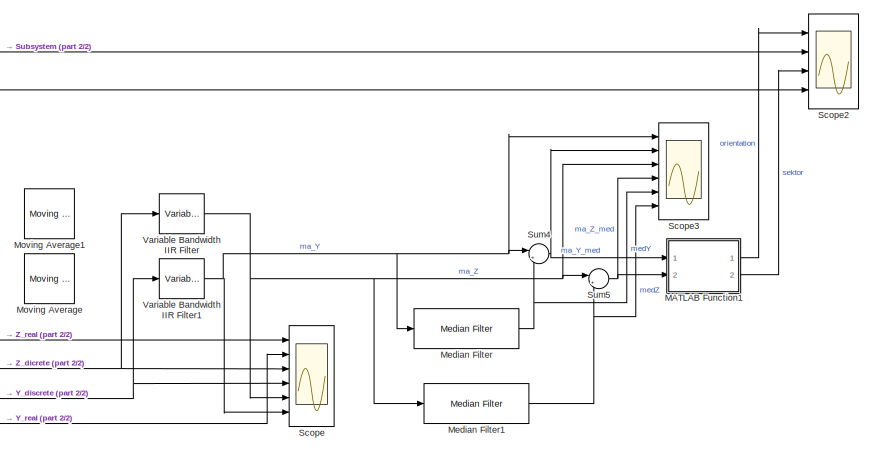
[diagram: root canvas - part 1/2, right side, full height]
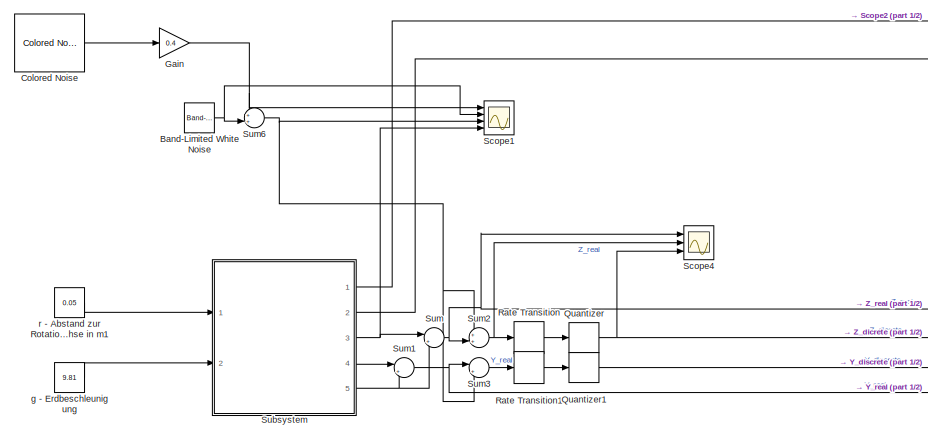
[diagram: root canvas - part 2/2, left side, full height]
MODEL slx_1b8a84136faf
KIND model
CONFIG AbsTol = auto
CONFIG EnableMultiTasking = off
CONFIG FixedStep = 1e-3
CONFIG MaxStep = auto
CONFIG MinStep = auto
CONFIG RelTol = 1e-3
CONFIG SampleTimeConstraint = Unconstrained
CONFIG Solver = FixedStepAuto
CONFIG SolverName = FixedStepAuto
CONFIG StartTime = 0.0
CONFIG StopTime = 30
BLOCK [Reference] Band-Limited White Noise  REF=simulink/Sources/Band-Limited
White Noise
  Ports = [0, 1]
  SourceBlock = simulink/Sources/Band-Limited\nWhite Noise
  SourceProductBaseCode = SL
  SourceType = Band-Limited White Noise.
BLOCK [Reference] Colored Noise  REF=dspsrcs4/Colored Noise
  Ports = [0, 1]
  SourceBlock = dspsrcs4/Colored Noise
  SourceProductBaseCode = DS
  SourceType = dsp.simulink.ColoredNoise
BLOCK [Gain] Gain
  Gain = 0.4
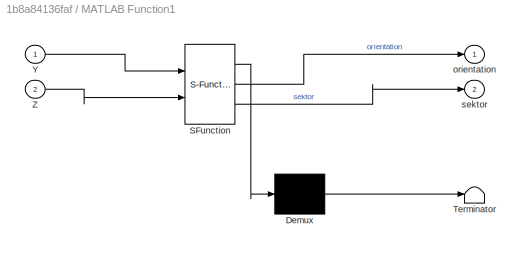
BLOCK [SubSystem] MATLAB Function1
  ErrorFcn = Stateflow.Translate.translate
  PermitHierarchicalResolution = ExplicitOnly
  Ports = [2, 2]
  RequestExecContextInheritance = off
  SFBlockType = MATLAB Function
  TreatAsAtomicUnit = on
BLOCK [Demux] MATLAB Function1/ Demux 
  Outputs = 1
  Ports = [1, 1]
BLOCK [S-Function] MATLAB Function1/ SFunction 
  EnableBusSupport = on
  FunctionName = sf_sfun
  PortCounts = [2 3]
  Ports = [2, 3]
  SFcnIsStateOwnerBlock = off
  SFunctionDeploymentMode = off
  Tag = Stateflow S-Function 3
BLOCK [Terminator] MATLAB Function1/ Terminator 
BLOCK [Inport] MATLAB Function1/Y
BLOCK [Inport] MATLAB Function1/Z
  Port = 2
BLOCK [Outport] MATLAB Function1/orientation
BLOCK [Outport] MATLAB Function1/sektor
  Port = 2
BLOCK [Reference] Median Filter  REF=dspstat3/Median
Filter
  Ports = [1, 1]
  SourceBlock = dspstat3/Median\nFilter
  SourceProductBaseCode = DS
  SourceType = dsp.MedianFilter
BLOCK [Reference] Median Filter1  REF=dspstat3/Median
Filter
  Ports = [1, 1]
  SourceBlock = dspstat3/Median\nFilter
  SourceProductBaseCode = DS
  SourceType = dsp.MedianFilter
BLOCK [Reference] Moving Average  REF=dspstat3/Moving
Average
  Ports = [1, 1]
  SourceBlock = dspstat3/Moving\nAverage
  SourceProductBaseCode = DS
  SourceType = dsp.simulink.MovingAverage
BLOCK [Reference] Moving Average1  REF=dspstat3/Moving
Average
  Ports = [1, 1]
  SourceBlock = dspstat3/Moving\nAverage
  SourceProductBaseCode = DS
  SourceType = dsp.simulink.MovingAverage
BLOCK [Quantizer] Quantizer
  QuantizationInterval = (16/1024)/2
BLOCK [Quantizer] Quantizer1
  QuantizationInterval = (16/1024)/2
BLOCK [RateTransition] Rate Transition
  OutPortSampleTime = 1/100
BLOCK [RateTransition] Rate Transition1
  OutPortSampleTime = 1/100
BLOCK [Scope] Scope
  Floating = off
  NumInputPorts = 6
  Ports = [6]
  ScopeSpecificationString = Simulink.scopes.TimeScopeBlockCfg('CurrentConfiguration', extmgr.ConfigurationSet(extmgr.Configuration('Core','General UI',true),extmgr.Configuration('Core','Source UI',true),extmgr.Configuration('Sources','WiredSimulink',true),extmgr.Configuration('Visuals','Time Domain',true,'SerializedDisplays',{struct('MinYLimReal','-10.02344','MaxYLimReal','22.24219','YLabelReal','','MinYLimMag','0.00000','Ma...<+1592ch>
BLOCK [Scope] Scope1
  Floating = off
  NumInputPorts = 4
  Ports = [4]
  ScopeSpecificationString = Simulink.scopes.TimeScopeBlockCfg('CurrentConfiguration', extmgr.ConfigurationSet(extmgr.Configuration('Core','General UI',true),extmgr.Configuration('Core','Source UI',true),extmgr.Configuration('Sources','WiredSimulink',true,'DataLoggingVariableName','ScopeData1'),extmgr.Configuration('Visuals','Time Domain',true,'SerializedDisplays',{struct('MinYLimReal','-2.54074','MaxYLimReal','2.07431','YLab...<+3439ch>
BLOCK [Scope] Scope2
  Floating = off
  NumInputPorts = 4
  Ports = [4]
  ScopeSpecificationString = Simulink.scopes.TimeScopeBlockCfg('CurrentConfiguration', extmgr.ConfigurationSet(extmgr.Configuration('Core','General UI',true),extmgr.Configuration('Core','Source UI',true),extmgr.Configuration('Sources','WiredSimulink',true,'DataLoggingVariableName','ScopeData2'),extmgr.Configuration('Visuals','Time Domain',true,'SerializedDisplays',{struct('MinYLimReal','-0.78537','MaxYLimReal','7.06852','YLab...<+1618ch>
BLOCK [Scope] Scope3
  Floating = off
  NumInputPorts = 6
  Ports = [6]
  ScopeSpecificationString = Simulink.scopes.TimeScopeBlockCfg('CurrentConfiguration', extmgr.ConfigurationSet(extmgr.Configuration('Core','General UI',true),extmgr.Configuration('Core','Source UI',true),extmgr.Configuration('Sources','WiredSimulink',true,'DataLoggingVariableName','ScopeData3'),extmgr.Configuration('Visuals','Time Domain',true,'SerializedDisplays',{struct('MinYLimReal','-4.56479','MaxYLimReal','16.61072','YLa...<+1646ch>
BLOCK [Scope] Scope4
  Floating = off
  NumInputPorts = 3
  Ports = [3]
  ScopeSpecificationString = Simulink.scopes.TimeScopeBlockCfg('CurrentConfiguration', extmgr.ConfigurationSet(extmgr.Configuration('Core','General UI',true),extmgr.Configuration('Core','Source UI',true),extmgr.Configuration('Sources','WiredSimulink',true,'DataLoggingVariableName','ScopeData2'),extmgr.Configuration('Visuals','Time Domain',true,'SerializedDisplays',{struct('MinYLimReal','-2.81243','MaxYLimReal','15.73224','YLa...<+2669ch>
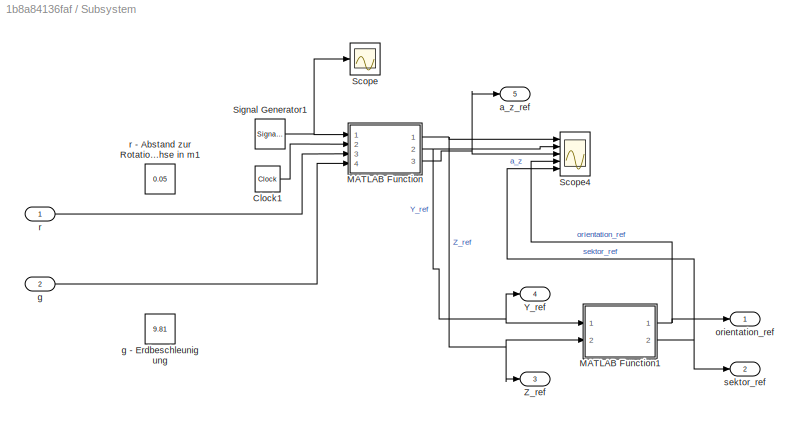
BLOCK [SubSystem] Subsystem
  Ports = [2, 5]
  RequestExecContextInheritance = off
BLOCK [Clock] Subsystem/Clock1
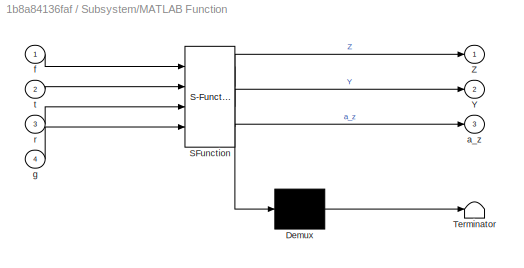
BLOCK [SubSystem] Subsystem/MATLAB Function
  ErrorFcn = Stateflow.Translate.translate
  PermitHierarchicalResolution = ExplicitOnly
  Ports = [4, 3]
  RequestExecContextInheritance = off
  SFBlockType = MATLAB Function
  TreatAsAtomicUnit = on
BLOCK [Demux] Subsystem/MATLAB Function/ Demux 
  Outputs = 1
  Ports = [1, 1]
BLOCK [S-Function] Subsystem/MATLAB Function/ SFunction 
  EnableBusSupport = on
  FunctionName = sf_sfun
  PortCounts = [4 4]
  Ports = [4, 4]
  SFcnIsStateOwnerBlock = off
  SFunctionDeploymentMode = off
  Tag = Stateflow S-Function 2
BLOCK [Terminator] Subsystem/MATLAB Function/ Terminator 
BLOCK [Outport] Subsystem/MATLAB Function/Y
  Port = 2
BLOCK [Outport] Subsystem/MATLAB Function/Z
BLOCK [Outport] Subsystem/MATLAB Function/a_z
  Port = 3
BLOCK [Inport] Subsystem/MATLAB Function/f
BLOCK [Inport] Subsystem/MATLAB Function/g
  Port = 4
BLOCK [Inport] Subsystem/MATLAB Function/r
  Port = 3
BLOCK [Inport] Subsystem/MATLAB Function/t
  Port = 2
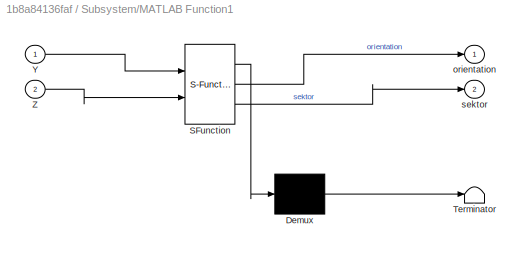
BLOCK [SubSystem] Subsystem/MATLAB Function1
  ErrorFcn = Stateflow.Translate.translate
  PermitHierarchicalResolution = ExplicitOnly
  Ports = [2, 2]
  RequestExecContextInheritance = off
  SFBlockType = MATLAB Function
  TreatAsAtomicUnit = on
BLOCK [Demux] Subsystem/MATLAB Function1/ Demux 
  Outputs = 1
  Ports = [1, 1]
BLOCK [S-Function] Subsystem/MATLAB Function1/ SFunction 
  EnableBusSupport = on
  FunctionName = sf_sfun
  PortCounts = [2 3]
  Ports = [2, 3]
  SFcnIsStateOwnerBlock = off
  SFunctionDeploymentMode = off
  Tag = Stateflow S-Function 1
BLOCK [Terminator] Subsystem/MATLAB Function1/ Terminator 
BLOCK [Inport] Subsystem/MATLAB Function1/Y
BLOCK [Inport] Subsystem/MATLAB Function1/Z
  Port = 2
BLOCK [Outport] Subsystem/MATLAB Function1/orientation
BLOCK [Outport] Subsystem/MATLAB Function1/sektor
  Port = 2
BLOCK [Scope] Subsystem/Scope
  Floating = off
  NumInputPorts = 1
  Ports = [1]
  ScopeSpecificationString = Simulink.scopes.TimeScopeBlockCfg('CurrentConfiguration', extmgr.ConfigurationSet(extmgr.Configuration('Core','General UI',true),extmgr.Configuration('Core','Source UI',true),extmgr.Configuration('Sources','WiredSimulink',true,'DataLoggingVariableName','ScopeData1'),extmgr.Configuration('Visuals','Time Domain',true,'SerializedDisplays',{struct('MinYLimReal','-1.00000','MaxYLimReal','9.00000','YLab...<+1420ch>
BLOCK [Scope] Subsystem/Scope4
  Floating = off
  NumInputPorts = 5
  Ports = [5]
  ScopeSpecificationString = Simulink.scopes.TimeScopeBlockCfg('CurrentConfiguration', extmgr.ConfigurationSet(extmgr.Configuration('Core','General UI',true),extmgr.Configuration('Core','Source UI',true),extmgr.Configuration('Sources','WiredSimulink',true,'DataLoggingVariableName','ScopeData4'),extmgr.Configuration('Visuals','Time Domain',true,'SerializedDisplays',{struct('MinYLimReal','-2.73471','MaxYLimReal','14.61249','YLa...<+1720ch>
BLOCK [SignalGenerator] Subsystem/Signal Generator1
  Amplitude = 8
  Frequency = 0.25/30
  Ports = [0, 1]
BLOCK [Outport] Subsystem/Y_ref
  Port = 4
BLOCK [Outport] Subsystem/Z_ref
  Port = 3
BLOCK [Outport] Subsystem/a_z_ref
  Port = 5
BLOCK [Inport] Subsystem/g
  Port = 2
BLOCK [Constant] Subsystem/g - Erdbeschleunigung
  Value = 9.81
BLOCK [Outport] Subsystem/orientation_ref
BLOCK [Inport] Subsystem/r
BLOCK [Constant] Subsystem/r - Abstand zur Rotationsachse in m1
  Value = 0.05
BLOCK [Outport] Subsystem/sektor_ref
  Port = 2
BLOCK [Sum] Sum
  Inputs = |++
  Ports = [2, 1]
BLOCK [Sum] Sum1
  Inputs = |++
  Ports = [2, 1]
BLOCK [Sum] Sum2
  Inputs = ++|
  Ports = [2, 1]
BLOCK [Sum] Sum3
  Inputs = |++
  Ports = [2, 1]
BLOCK [Sum] Sum4
  Inputs = |+-
  Ports = [2, 1]
BLOCK [Sum] Sum5
  Inputs = |+-
  Ports = [2, 1]
BLOCK [Sum] Sum6
  Inputs = ++|
  Ports = [2, 1]
BLOCK [Reference] Variable Bandwidth IIR Filter  REF=dspfdesign/Variable Bandwidth
IIR Filter
  Ports = [1, 1]
  SourceBlock = dspfdesign/Variable Bandwidth\nIIR Filter
  SourceProductBaseCode = DS
  SourceType = dsp.simulink.VariableBandwidthIIRFilter
BLOCK [Reference] Variable Bandwidth IIR Filter1  REF=dspfdesign/Variable Bandwidth
IIR Filter
  Ports = [1, 1]
  SourceBlock = dspfdesign/Variable Bandwidth\nIIR Filter
  SourceProductBaseCode = DS
  SourceType = dsp.simulink.VariableBandwidthIIRFilter
BLOCK [Constant] g - Erdbeschleunigung
  Value = 9.81
BLOCK [Constant] r - Abstand zur Rotationsachse in m1
  Value = 0.05
NET Band-Limited White Noise:1 -> Scope1:2, Sum6:2
LINE Colored Noise:1 -> Gain:1
NET Gain:1 -> Scope1:1, Sum6:1
LINE MATLAB Function1:1 -> Scope2:1
LINE MATLAB Function1:2 -> Scope2:3
NET Median Filter1:1 -> Scope3:6, Sum5:2
NET Median Filter:1 -> Scope3:5, Sum4:2
NET Quantizer1:1 -> Scope:4, Variable Bandwidth IIR Filter1:1
NET Quantizer:1 -> Scope4:3, Scope:3, Variable Bandwidth IIR Filter:1
LINE Rate Transition1:1 -> Quantizer1:1
LINE Rate Transition:1 -> Quantizer:1
LINE Subsystem/Clock1:1 -> Subsystem/MATLAB Function:2
NET Subsystem/MATLAB Function1:1 -> Subsystem/Scope4:4, Subsystem/orientation_ref:1
NET Subsystem/MATLAB Function1:2 -> Subsystem/Scope4:5, Subsystem/sektor_ref:1
NET Subsystem/MATLAB Function:1 -> Subsystem/MATLAB Function1:2, Subsystem/Scope4:1, Subsystem/Z_ref:1
NET Subsystem/MATLAB Function:2 -> Subsystem/MATLAB Function1:1, Subsystem/Scope4:2, Subsystem/Y_ref:1
NET Subsystem/MATLAB Function:3 -> Subsystem/Scope4:3, Subsystem/a_z_ref:1
NET Subsystem/Signal Generator1:1 -> Subsystem/MATLAB Function:1, Subsystem/Scope:1
LINE Subsystem/g:1 -> Subsystem/MATLAB Function:4
LINE Subsystem/r:1 -> Subsystem/MATLAB Function:3
LINE Subsystem:1 -> Scope2:2
LINE Subsystem:2 -> Scope2:4
NET Subsystem:3 -> Scope1:4, Sum:1
LINE Subsystem:4 -> Sum1:1
NET Subsystem:5 -> Sum1:2, Sum:2
NET Sum1:1 -> Scope:2, Sum3:1
NET Sum2:1 -> Rate Transition:1, Scope4:2
LINE Sum3:1 -> Rate Transition1:1
NET Sum4:1 -> MATLAB Function1:1, Scope3:2
NET Sum5:1 -> MATLAB Function1:2, Scope3:4
NET Sum6:1 -> Scope1:3, Sum2:1, Sum3:2
NET Sum:1 -> Scope4:1, Scope:1, Sum2:2
NET Variable Bandwidth IIR Filter1:1 -> Median Filter:1, Scope3:1, Scope:6, Sum4:1
NET Variable Bandwidth IIR Filter:1 -> Median Filter1:1, Scope3:3, Scope:5, Sum5:1
LINE g - Erdbeschleunigung:1 -> Subsystem:2
LINE r - Abstand zur Rotationsachse in m1:1 -> Subsystem:1
note: NET lines group one-source signal fan-out (src -> all destinations, sorted); 1:1 wires keep LINE
CHART Subsystem/MATLAB Function1 states=1 transitions=1
  STATE_LABEL 'eML_blk_kernel()'
  STATE_LABEL 'SCRIPT:\nfunction [orientation,sektor] = fcn(Y,Z)\n\norientation = 10;\nsektor = 0;\n\n% if ((Y>0)==1)==((Z>=0)==1) % I\n%     orientation = atan(Z/Y);\n%     sektor = 1;\n% elseif ((Y<=0)==1)==((Z>0)==1)   % II\n%     orientation = (pi/2)+atan(-Y/Z);\n%     sektor = 2;\n% elseif ((Z<=0)==1)==((Y<0)==1)    % III\n%     orientation = pi+atan(Z/Y);\n%     sektor = 3;\n% elseif ((Y>=0)==1)==((Z<0)==1)    % IV\n%    ...<+495ch>'
CHART Subsystem/MATLAB Function states=1 transitions=1
  STATE_LABEL 'eML_blk_kernel()'
  STATE_LABEL 'SCRIPT:\nfunction [Z,Y,a_z] = fcn(f,t,r,g)\n\na_z = ((2*pi*f)*(2*pi*f)*r)/g;\nY = sin(2*pi*f*t);\nZ = cos(2*pi*f*t);\n'
CHART MATLAB Function1 states=1 transitions=1
  STATE_LABEL 'eML_blk_kernel()'
  STATE_LABEL 'SCRIPT:\nfunction [orientation,sektor] = fcn(Y,Z)\n\norientation = 10;\nsektor = 0;\n\n% if ((Y>0)==1)==((Z>=0)==1) % I\n%     orientation = atan(Z/Y);\n%     sektor = 1;\n% elseif ((Y<=0)==1)==((Z>0)==1)   % II\n%     orientation = (pi/2)+atan(-Y/Z);\n%     sektor = 2;\n% elseif ((Z<=0)==1)==((Y<0)==1)    % III\n%     orientation = pi+atan(Z/Y);\n%     sektor = 3;\n% elseif ((Y>=0)==1)==((Z<0)==1)    % IV\n%    ...<+495ch>'
CHART  states=0 transitions=0
CHART  states=0 transitions=0
CHART  states=0 transitions=0
